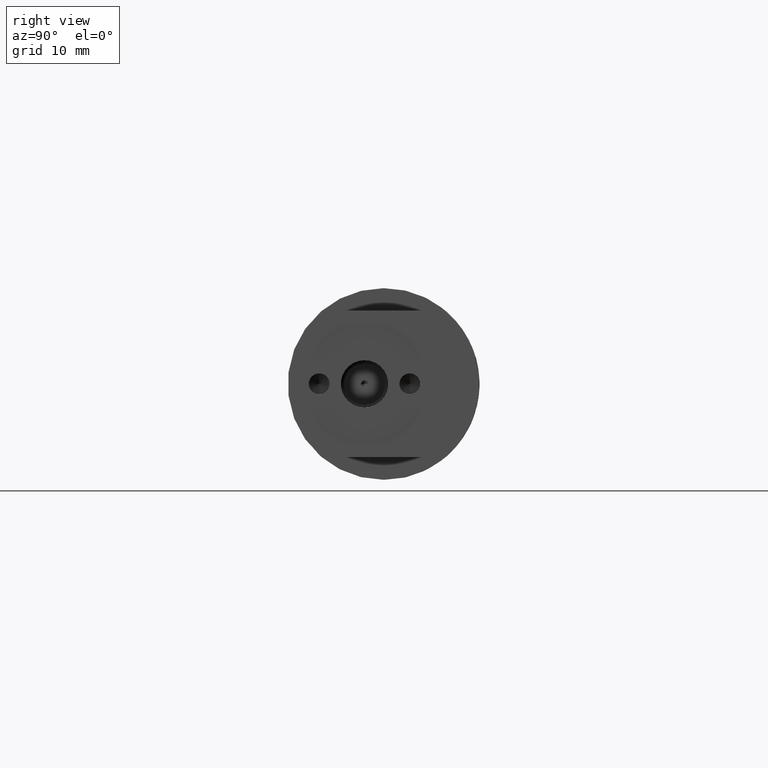
[diagram: clean part render]
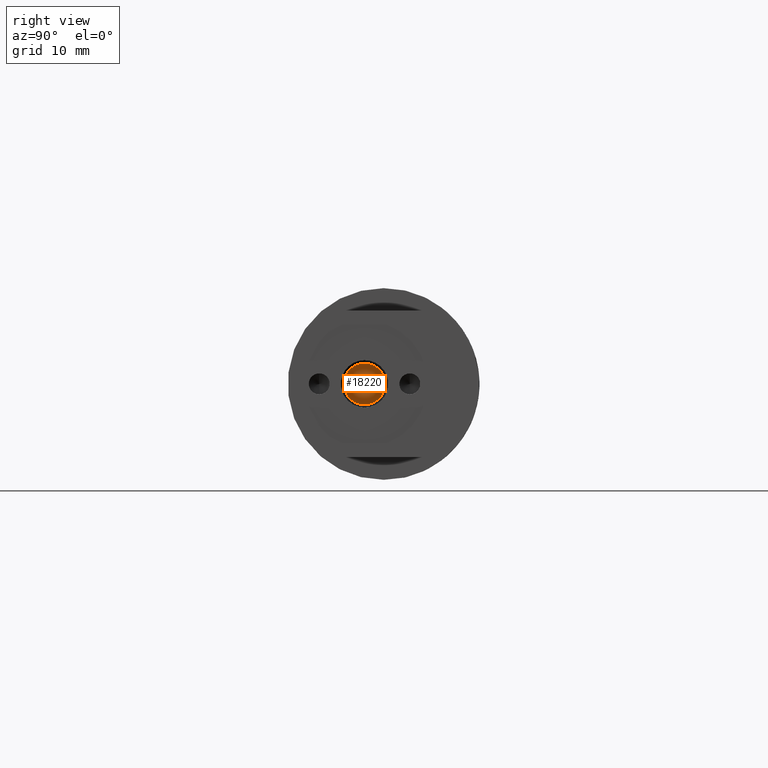
[diagram: same view with one face highlighted and labeled with its STEP entity id]
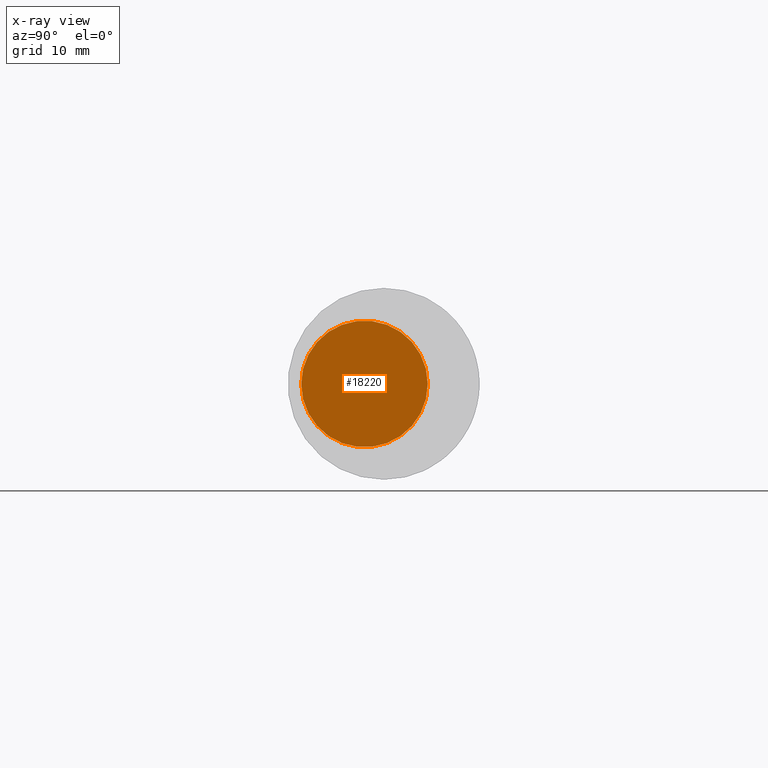
[diagram: x-ray of the same camera — body ghosted, the highlighted face saturated]
A machine part, right view. The second image highlights one B-rep face of the part: STEP entity #18220.
The next image is the same camera in x-ray: the body ghosted, the highlighted face saturated — about 0% of this face is hidden behind the body in this view.
In plain terms, the highlighted planar face has unit normal (-1, -0, 0).
Its self-contained STEP definition (entity closure, byte-faithful):
#15 = VERTEX_POINT ( 'NONE', #10400 ) ;
#2095 = CARTESIAN_POINT ( 'NONE',  ( -13.00000000000000000, -2.750000000000000000, 0.0000000000000000000 ) ) ;
#2874 = EDGE_CURVE ( 'NONE', #20173, #10675, #8179, .T. ) ;
#2983 = DIRECTION ( 'NONE',  ( 0.0000000000000000000, -1.000000000000000000, 0.0000000000000000000 ) ) ;
#3022 = ORIENTED_EDGE ( 'NONE', *, *, #13487, .T. ) ;
#3437 = EDGE_LOOP ( 'NONE', ( #11058, #15548 ) ) ;
#3718 = EDGE_CURVE ( 'NONE', #10675, #20173, #12020, .T. ) ;
#3914 = CIRCLE ( 'NONE', #18447, 9.080000000000000100 ) ;
#4695 = DIRECTION ( 'NONE',  ( 1.000000000000000000, 1.216938440261776000E-016, -0.0000000000000000000 ) ) ;
#5292 = AXIS2_PLACEMENT_3D ( 'NONE', #7063, #8549, #16893 ) ;
#5418 = CARTESIAN_POINT ( 'NONE',  ( -13.00000000000000000, -2.250000000000000000, 0.0000000000000000000 ) ) ;
#6104 = FACE_BOUND ( 'NONE', #3437, .T. ) ;
#6920 = AXIS2_PLACEMENT_3D ( 'NONE', #12821, #4695, #2983 ) ;
#6999 = DIRECTION ( 'NONE',  ( 1.000000000000000000, 1.216938440261776000E-016, -0.0000000000000000000 ) ) ;
#7051 = EDGE_CURVE ( 'NONE', #15, #18059, #17696, .T. ) ;
#7063 = CARTESIAN_POINT ( 'NONE',  ( -13.00000000000000000, -2.750000000000000000, 0.0000000000000000000 ) ) ;
#8179 = CIRCLE ( 'NONE', #6920, 0.5000000000000000000 ) ;
#8549 = DIRECTION ( 'NONE',  ( -1.000000000000000000, -1.216938440261776000E-016, 0.0000000000000000000 ) ) ;
#8607 = CARTESIAN_POINT ( 'NONE',  ( -13.00000000000000000, -2.750000000000000000, 0.0000000000000000000 ) ) ;
#8691 = PLANE ( 'NONE',  #5292 ) ;
#10279 = DIRECTION ( 'NONE',  ( 1.000000000000000000, 1.216938440261776000E-016, 0.0000000000000000000 ) ) ;
#10400 = CARTESIAN_POINT ( 'NONE',  ( -12.99999999999999800, -11.83000000000000000, 1.111979293625796500E-015 ) ) ;
#10675 = VERTEX_POINT ( 'NONE', #5418 ) ;
#11058 = ORIENTED_EDGE ( 'NONE', *, *, #3718, .F. ) ;
#11790 = DIRECTION ( 'NONE',  ( -1.910488409666087000E-016, 1.000000000000000000, 0.0000000000000000000 ) ) ;
#12020 = CIRCLE ( 'NONE', #12716, 0.5000000000000000000 ) ;
#12716 = AXIS2_PLACEMENT_3D ( 'NONE', #15272, #6999, #13463 ) ;
#12821 = CARTESIAN_POINT ( 'NONE',  ( -13.00000000000000000, -2.750000000000000000, 0.0000000000000000000 ) ) ;
#12953 = CARTESIAN_POINT ( 'NONE',  ( -13.00000000000000000, -3.250000000000000000, 6.123233995736754900E-017 ) ) ;
#13463 = DIRECTION ( 'NONE',  ( 0.0000000000000000000, -1.000000000000000000, 0.0000000000000000000 ) ) ;
#13487 = EDGE_CURVE ( 'NONE', #18059, #15, #3914, .T. ) ;
#13584 = DIRECTION ( 'NONE',  ( -1.910488409666087000E-016, 1.000000000000000000, 0.0000000000000000000 ) ) ;
#15099 = FACE_OUTER_BOUND ( 'NONE', #18321, .T. ) ;
#15272 = CARTESIAN_POINT ( 'NONE',  ( -13.00000000000000000, -2.750000000000000000, 0.0000000000000000000 ) ) ;
#15548 = ORIENTED_EDGE ( 'NONE', *, *, #2874, .F. ) ;
#16232 = ORIENTED_EDGE ( 'NONE', *, *, #7051, .T. ) ;
#16893 = DIRECTION ( 'NONE',  ( 1.216938440261776000E-016, -1.000000000000000000, 0.0000000000000000000 ) ) ;
#17696 = CIRCLE ( 'NONE', #19229, 9.080000000000000100 ) ;
#18059 = VERTEX_POINT ( 'NONE', #19357 ) ;
#18220 = ADVANCED_FACE ( 'NONE', ( #15099, #6104 ), #8691, .F. ) ;
#18321 = EDGE_LOOP ( 'NONE', ( #3022, #16232 ) ) ;
#18447 = AXIS2_PLACEMENT_3D ( 'NONE', #2095, #20388, #13584 ) ;
#19229 = AXIS2_PLACEMENT_3D ( 'NONE', #8607, #10279, #11790 ) ;
#19357 = CARTESIAN_POINT ( 'NONE',  ( -13.00000000000000200, 6.330000000000000100, 0.0000000000000000000 ) ) ;
#20173 = VERTEX_POINT ( 'NONE', #12953 ) ;
#20388 = DIRECTION ( 'NONE',  ( 1.000000000000000000, 1.216938440261776000E-016, 0.0000000000000000000 ) ) ;